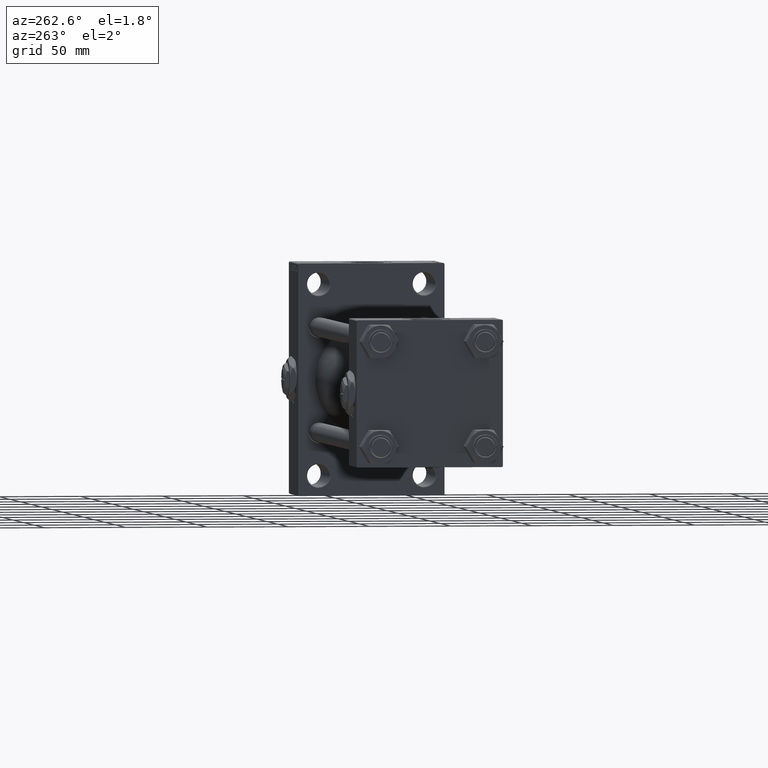
[diagram: clean part render]
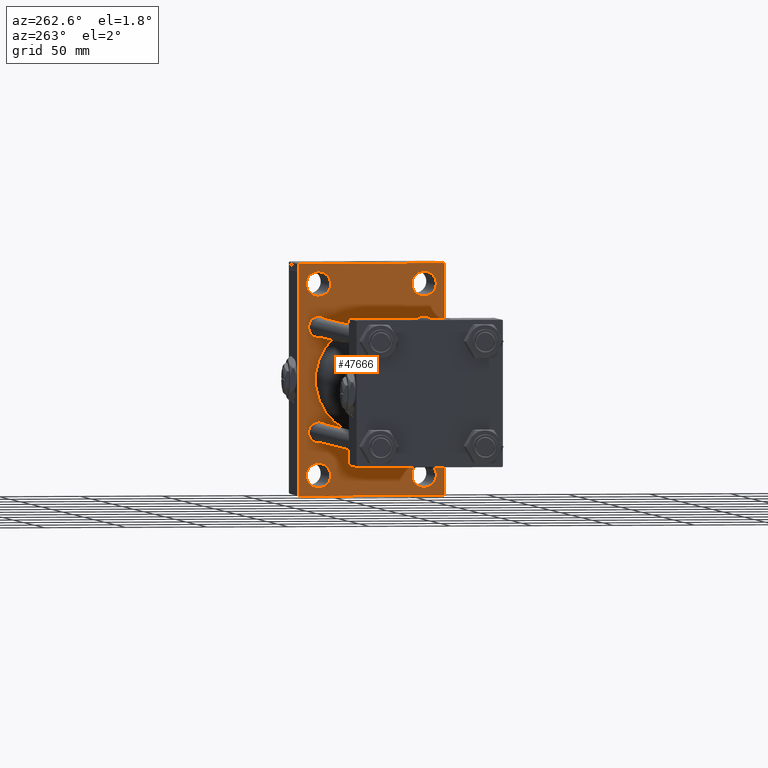
[diagram: same view with one face highlighted and labeled with its STEP entity id]
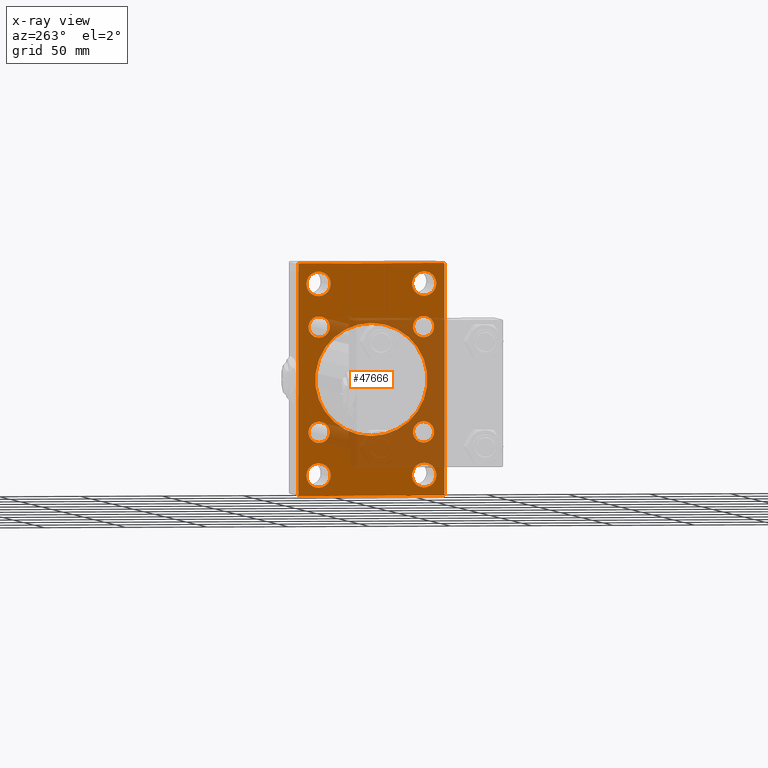
[diagram: x-ray of the same camera — body ghosted, the highlighted face saturated]
A machine part, auxiliary view. The second image highlights one B-rep face of the part: STEP entity #47666.
The next image is the same camera in x-ray: the body ghosted, the highlighted face saturated — about 33% of this face is hidden behind the body in this view.
In plain terms, the highlighted planar face has unit normal (-1, 0, 0).
Its self-contained STEP definition (entity closure, byte-faithful):
#400 = EDGE_LOOP ( 'NONE', ( #10069, #37564 ) ) ;
#523 = FACE_BOUND ( 'NONE', #47285, .T. ) ;
#637 = DIRECTION ( 'NONE',  ( 1.000000000000000000, 0.000000000000000000, 0.000000000000000000 ) ) ;
#773 = FACE_BOUND ( 'NONE', #25046, .T. ) ;
#1167 = ORIENTED_EDGE ( 'NONE', *, *, #43385, .T. ) ;
#1505 = CARTESIAN_POINT ( 'NONE',  ( 276.9999999999999432, -32.50000000000000000, 50.99999999999983658 ) ) ;
#1627 = AXIS2_PLACEMENT_3D ( 'NONE', #17409, #47647, #32024 ) ;
#1908 = DIRECTION ( 'NONE',  ( 1.000000000000000000, -0.000000000000000000, 0.000000000000000000 ) ) ;
#2069 = EDGE_LOOP ( 'NONE', ( #33215, #44481 ) ) ;
#2249 = DIRECTION ( 'NONE',  ( -0.000000000000000000, 0.7071067811865426878, 0.7071067811865524577 ) ) ;
#2492 = VERTEX_POINT ( 'NONE', #42956 ) ;
#2640 = ORIENTED_EDGE ( 'NONE', *, *, #8752, .T. ) ;
#2874 = CARTESIAN_POINT ( 'NONE',  ( 276.9999999999999432, -32.50000000000000000, -58.49999999999999289 ) ) ;
#2924 = AXIS2_PLACEMENT_3D ( 'NONE', #24348, #25756, #33287 ) ;
#3051 = DIRECTION ( 'NONE',  ( 0.000000000000000000, -0.7071067811865965336, 0.7071067811864985009 ) ) ;
#3549 = EDGE_CURVE ( 'NONE', #28884, #37235, #15712, .T. ) ;
#4048 = DIRECTION ( 'NONE',  ( -0.000000000000000000, 0.000000000000000000, 1.000000000000000000 ) ) ;
#4086 = CARTESIAN_POINT ( 'NONE',  ( 276.9999999999999432, -44.49999999999988631, -71.00000000000000000 ) ) ;
#4540 = EDGE_CURVE ( 'NONE', #13763, #28884, #20790, .T. ) ;
#4754 = EDGE_LOOP ( 'NONE', ( #39285, #28755 ) ) ;
#5047 = FACE_BOUND ( 'NONE', #2069, .T. ) ;
#5461 = CARTESIAN_POINT ( 'NONE',  ( 276.9999999999999432, 45.00000000000001421, -70.99999999999998579 ) ) ;
#5563 = VECTOR ( 'NONE', #42402, 1000.000000000000000 ) ;
#5617 = CIRCLE ( 'NONE', #37694, 6.500000000000005329 ) ;
#5923 = CIRCLE ( 'NONE', #32416, 7.500000000000173195 ) ;
#5946 = CARTESIAN_POINT ( 'NONE',  ( 276.9999999999999432, 32.14999999999999147, 32.15000000000000568 ) ) ;
#6184 = VERTEX_POINT ( 'NONE', #4086 ) ;
#6284 = VERTEX_POINT ( 'NONE', #25862 ) ;
#6532 = CARTESIAN_POINT ( 'NONE',  ( 276.9999999999999432, 45.00000000000002132, 70.50000000000000000 ) ) ;
#6605 = AXIS2_PLACEMENT_3D ( 'NONE', #5946, #41387, #21532 ) ;
#6814 = EDGE_LOOP ( 'NONE', ( #12923, #2640 ) ) ;
#6823 = LINE ( 'NONE', #22165, #32618 ) ;
#7056 = VERTEX_POINT ( 'NONE', #1505 ) ;
#7442 = CARTESIAN_POINT ( 'NONE',  ( 276.9999999999999432, -32.14999999999997726, 32.15000000000001279 ) ) ;
#7457 = CIRCLE ( 'NONE', #42008, 7.500000000000180300 ) ;
#8183 = CARTESIAN_POINT ( 'NONE',  ( 276.9999999999999432, -44.49999999999995026, 70.99999999999998579 ) ) ;
#8500 = CARTESIAN_POINT ( 'NONE',  ( 276.9999999999999432, 1.622946243093158675E-15, -34.50000000000000000 ) ) ;
#8752 = EDGE_CURVE ( 'NONE', #42795, #37170, #24237, .T. ) ;
#8841 = DIRECTION ( 'NONE',  ( 1.000000000000000000, -0.000000000000000000, 0.000000000000000000 ) ) ;
#8986 = DIRECTION ( 'NONE',  ( 0.000000000000000000, 0.000000000000000000, 1.000000000000000000 ) ) ;
#9271 = VERTEX_POINT ( 'NONE', #37140 ) ;
#9277 = VERTEX_POINT ( 'NONE', #10723 ) ;
#9490 = CARTESIAN_POINT ( 'NONE',  ( 276.9999999999999432, -32.50000000000000000, -50.99999999999980815 ) ) ;
#9642 = DIRECTION ( 'NONE',  ( 0.000000000000000000, 0.000000000000000000, -1.000000000000000000 ) ) ;
#9707 = DIRECTION ( 'NONE',  ( 1.000000000000000000, -0.000000000000000000, 0.000000000000000000 ) ) ;
#9766 = ORIENTED_EDGE ( 'NONE', *, *, #10092, .T. ) ;
#9886 = DIRECTION ( 'NONE',  ( 0.000000000000000000, -1.000000000000000000, -1.541976423090495387E-16 ) ) ;
#10069 = ORIENTED_EDGE ( 'NONE', *, *, #41894, .T. ) ;
#10092 = EDGE_CURVE ( 'NONE', #10265, #6184, #39917, .T. ) ;
#10265 = VERTEX_POINT ( 'NONE', #15694 ) ;
#10723 = CARTESIAN_POINT ( 'NONE',  ( 276.9999999999999432, 32.14999999999999147, -38.65000000000001279 ) ) ;
#10988 = CARTESIAN_POINT ( 'NONE',  ( 276.9999999999999432, 32.14999999999999147, 25.65000000000000213 ) ) ;
#11029 = CARTESIAN_POINT ( 'NONE',  ( 276.9999999999999432, 32.14999999999999147, -32.15000000000000568 ) ) ;
#11207 = DIRECTION ( 'NONE',  ( 1.000000000000000000, -0.000000000000000000, 0.000000000000000000 ) ) ;
#11455 = CARTESIAN_POINT ( 'NONE',  ( 276.9999999999999432, 45.00000000000002132, 71.00000000000000000 ) ) ;
#11480 = ORIENTED_EDGE ( 'NONE', *, *, #35062, .T. ) ;
#11514 = ORIENTED_EDGE ( 'NONE', *, *, #3549, .T. ) ;
#11742 = DIRECTION ( 'NONE',  ( 1.000000000000000000, -0.000000000000000000, 0.000000000000000000 ) ) ;
#12090 = VERTEX_POINT ( 'NONE', #8500 ) ;
#12544 = ORIENTED_EDGE ( 'NONE', *, *, #29013, .T. ) ;
#12923 = ORIENTED_EDGE ( 'NONE', *, *, #39286, .T. ) ;
#13269 = CARTESIAN_POINT ( 'NONE',  ( 276.9999999999999432, 32.50000000000000711, 66.00000000000018474 ) ) ;
#13763 = VERTEX_POINT ( 'NONE', #14756 ) ;
#13822 = VERTEX_POINT ( 'NONE', #15000 ) ;
#13846 = EDGE_CURVE ( 'NONE', #45768, #9277, #42239, .T. ) ;
#14419 = VECTOR ( 'NONE', #2249, 1000.000000000000000 ) ;
#14756 = CARTESIAN_POINT ( 'NONE',  ( 276.9999999999999432, 44.49999999999996447, 71.00000000000000000 ) ) ;
#14912 = VERTEX_POINT ( 'NONE', #44674 ) ;
#15000 = CARTESIAN_POINT ( 'NONE',  ( 276.9999999999999432, -2.602085213965210642E-15, 34.50000000000000000 ) ) ;
#15356 = CARTESIAN_POINT ( 'NONE',  ( 276.9999999999999432, -44.99999999999997158, 70.49999999999998579 ) ) ;
#15694 = CARTESIAN_POINT ( 'NONE',  ( 276.9999999999999432, 44.50000000000001421, -70.99999999999998579 ) ) ;
#15712 = LINE ( 'NONE', #11455, #5563 ) ;
#16095 = CARTESIAN_POINT ( 'NONE',  ( 276.9999999999999432, 0.000000000000000000, 0.000000000000000000 ) ) ;
#16591 = FACE_BOUND ( 'NONE', #6814, .T. ) ;
#17148 = CIRCLE ( 'NONE', #45283, 6.500000000000005329 ) ;
#17173 = ORIENTED_EDGE ( 'NONE', *, *, #13846, .T. ) ;
#17232 = EDGE_CURVE ( 'NONE', #20269, #17970, #46269, .T. ) ;
#17277 = CIRCLE ( 'NONE', #20568, 6.500000000000005329 ) ;
#17280 = EDGE_CURVE ( 'NONE', #13763, #24118, #25718, .T. ) ;
#17409 = CARTESIAN_POINT ( 'NONE',  ( 276.9999999999999432, -32.14999999999997726, -32.15000000000001279 ) ) ;
#17970 = VERTEX_POINT ( 'NONE', #21948 ) ;
#18153 = DIRECTION ( 'NONE',  ( 0.000000000000000000, 0.000000000000000000, 1.000000000000000000 ) ) ;
#18887 = VERTEX_POINT ( 'NONE', #32231 ) ;
#19018 = ORIENTED_EDGE ( 'NONE', *, *, #34195, .T. ) ;
#19494 = CARTESIAN_POINT ( 'NONE',  ( 276.9999999999999432, -32.14999999999997726, 32.15000000000001279 ) ) ;
#19901 = ORIENTED_EDGE ( 'NONE', *, *, #25872, .T. ) ;
#19906 = ORIENTED_EDGE ( 'NONE', *, *, #38598, .T. ) ;
#20269 = VERTEX_POINT ( 'NONE', #9490 ) ;
#20302 = VERTEX_POINT ( 'NONE', #20811 ) ;
#20362 = AXIS2_PLACEMENT_3D ( 'NONE', #44104, #36775, #9642 ) ;
#20383 = DIRECTION ( 'NONE',  ( 0.000000000000000000, 0.000000000000000000, 1.000000000000000000 ) ) ;
#20385 = FACE_BOUND ( 'NONE', #41155, .T. ) ;
#20539 = CARTESIAN_POINT ( 'NONE',  ( 276.9999999999999432, -32.50000000000000000, 58.50000000000000711 ) ) ;
#20568 = AXIS2_PLACEMENT_3D ( 'NONE', #19494, #31802, #42898 ) ;
#20731 = ORIENTED_EDGE ( 'NONE', *, *, #37976, .T. ) ;
#20790 = LINE ( 'NONE', #44655, #39374 ) ;
#20811 = CARTESIAN_POINT ( 'NONE',  ( 276.9999999999999432, 32.50000000000000711, -50.99999999999982236 ) ) ;
#21056 = LINE ( 'NONE', #33334, #34710 ) ;
#21532 = DIRECTION ( 'NONE',  ( 0.000000000000000000, 0.000000000000000000, 1.000000000000000000 ) ) ;
#21658 = CIRCLE ( 'NONE', #44968, 7.500000000000173195 ) ;
#21870 = AXIS2_PLACEMENT_3D ( 'NONE', #33155, #48518, #40969 ) ;
#21948 = CARTESIAN_POINT ( 'NONE',  ( 276.9999999999999432, -32.50000000000000000, -66.00000000000017053 ) ) ;
#22152 = VECTOR ( 'NONE', #9886, 1000.000000000000000 ) ;
#22165 = CARTESIAN_POINT ( 'NONE',  ( 276.9999999999999432, -57.74999999999687361, -57.75000000000488853 ) ) ;
#23163 = FACE_BOUND ( 'NONE', #41365, .T. ) ;
#23422 = FACE_BOUND ( 'NONE', #4754, .T. ) ;
#23424 = DIRECTION ( 'NONE',  ( 0.000000000000000000, 0.000000000000000000, -1.000000000000000000 ) ) ;
#23504 = VECTOR ( 'NONE', #47482, 1000.000000000000000 ) ;
#23630 = VERTEX_POINT ( 'NONE', #10988 ) ;
#23756 = CIRCLE ( 'NONE', #25372, 7.500000000000173195 ) ;
#24118 = VERTEX_POINT ( 'NONE', #8183 ) ;
#24237 = CIRCLE ( 'NONE', #30634, 7.500000000000173195 ) ;
#24348 = CARTESIAN_POINT ( 'NONE',  ( 276.9999999999999432, 32.14999999999999147, 32.15000000000000568 ) ) ;
#24776 = CARTESIAN_POINT ( 'NONE',  ( 276.9999999999999432, -32.14999999999997726, 38.65000000000002700 ) ) ;
#25042 = DIRECTION ( 'NONE',  ( 0.000000000000000000, 0.000000000000000000, 1.000000000000000000 ) ) ;
#25046 = EDGE_LOOP ( 'NONE', ( #17173, #20731 ) ) ;
#25167 = CIRCLE ( 'NONE', #20362, 34.50000000000000000 ) ;
#25372 = AXIS2_PLACEMENT_3D ( 'NONE', #40150, #1908, #25042 ) ;
#25718 = LINE ( 'NONE', #28985, #22152 ) ;
#25756 = DIRECTION ( 'NONE',  ( 1.000000000000000000, -0.000000000000000000, 0.000000000000000000 ) ) ;
#25852 = AXIS2_PLACEMENT_3D ( 'NONE', #20539, #31852, #8986 ) ;
#25862 = CARTESIAN_POINT ( 'NONE',  ( 276.9999999999999432, 32.50000000000000711, -66.00000000000017053 ) ) ;
#25872 = EDGE_CURVE ( 'NONE', #27683, #24118, #40495, .T. ) ;
#26125 = DIRECTION ( 'NONE',  ( 0.000000000000000000, 0.000000000000000000, 1.000000000000000000 ) ) ;
#26196 = EDGE_CURVE ( 'NONE', #31893, #35623, #5617, .T. ) ;
#26428 = LINE ( 'NONE', #34470, #42814 ) ;
#26888 = EDGE_CURVE ( 'NONE', #13822, #12090, #32137, .T. ) ;
#26961 = AXIS2_PLACEMENT_3D ( 'NONE', #29724, #49111, #18153 ) ;
#27084 = DIRECTION ( 'NONE',  ( 0.000000000000000000, 0.000000000000000000, 1.000000000000000000 ) ) ;
#27176 = FACE_BOUND ( 'NONE', #46705, .T. ) ;
#27683 = VERTEX_POINT ( 'NONE', #15356 ) ;
#28372 = DIRECTION ( 'NONE',  ( 0.000000000000000000, 0.000000000000000000, 1.000000000000000000 ) ) ;
#28566 = DIRECTION ( 'NONE',  ( 0.000000000000000000, 0.7071067811865867636, -0.7071067811865081598 ) ) ;
#28755 = ORIENTED_EDGE ( 'NONE', *, *, #37508, .T. ) ;
#28884 = VERTEX_POINT ( 'NONE', #6532 ) ;
#28985 = CARTESIAN_POINT ( 'NONE',  ( 276.9999999999999432, 45.00000000000002132, 71.00000000000000000 ) ) ;
#29013 = EDGE_CURVE ( 'NONE', #18887, #7056, #21658, .T. ) ;
#29724 = CARTESIAN_POINT ( 'NONE',  ( 276.9999999999999432, -32.50000000000000000, -58.49999999999999289 ) ) ;
#29899 = DIRECTION ( 'NONE',  ( 1.000000000000000000, -0.000000000000000000, 0.000000000000000000 ) ) ;
#30123 = EDGE_CURVE ( 'NONE', #2492, #14912, #35328, .T. ) ;
#30634 = AXIS2_PLACEMENT_3D ( 'NONE', #47308, #39745, #20383 ) ;
#31225 = EDGE_CURVE ( 'NONE', #20302, #6284, #41016, .T. ) ;
#31306 = AXIS2_PLACEMENT_3D ( 'NONE', #38862, #637, #31313 ) ;
#31313 = DIRECTION ( 'NONE',  ( 0.000000000000000000, 0.000000000000000000, -1.000000000000000000 ) ) ;
#31802 = DIRECTION ( 'NONE',  ( 1.000000000000000000, -0.000000000000000000, 0.000000000000000000 ) ) ;
#31852 = DIRECTION ( 'NONE',  ( 1.000000000000000000, -0.000000000000000000, 0.000000000000000000 ) ) ;
#31893 = VERTEX_POINT ( 'NONE', #39658 ) ;
#31941 = FACE_OUTER_BOUND ( 'NONE', #37526, .T. ) ;
#32024 = DIRECTION ( 'NONE',  ( 0.000000000000000000, 0.000000000000000000, 1.000000000000000000 ) ) ;
#32137 = CIRCLE ( 'NONE', #31306, 34.50000000000000000 ) ;
#32231 = CARTESIAN_POINT ( 'NONE',  ( 276.9999999999999432, -32.50000000000000000, 66.00000000000018474 ) ) ;
#32391 = DIRECTION ( 'NONE',  ( 1.000000000000000000, -0.000000000000000000, 0.000000000000000000 ) ) ;
#32393 = CARTESIAN_POINT ( 'NONE',  ( 276.9999999999999432, 45.00000000000001421, -70.49999999999997158 ) ) ;
#32416 = AXIS2_PLACEMENT_3D ( 'NONE', #43303, #8841, #40510 ) ;
#32618 = VECTOR ( 'NONE', #3051, 1000.000000000000114 ) ;
#32653 = ORIENTED_EDGE ( 'NONE', *, *, #26888, .T. ) ;
#33084 = CIRCLE ( 'NONE', #21870, 6.500000000000005329 ) ;
#33155 = CARTESIAN_POINT ( 'NONE',  ( 276.9999999999999432, -32.14999999999997726, -32.15000000000001279 ) ) ;
#33215 = ORIENTED_EDGE ( 'NONE', *, *, #35028, .T. ) ;
#33287 = DIRECTION ( 'NONE',  ( 0.000000000000000000, 0.000000000000000000, 1.000000000000000000 ) ) ;
#33334 = CARTESIAN_POINT ( 'NONE',  ( 276.9999999999999432, 57.75000000000061817, -57.74999999999901235 ) ) ;
#33569 = AXIS2_PLACEMENT_3D ( 'NONE', #16095, #46317, #4048 ) ;
#34049 = CARTESIAN_POINT ( 'NONE',  ( 276.9999999999999432, 32.50000000000000711, -58.50000000000000000 ) ) ;
#34195 = EDGE_CURVE ( 'NONE', #7056, #18887, #41118, .T. ) ;
#34470 = CARTESIAN_POINT ( 'NONE',  ( 276.9999999999999432, -44.99999999999997158, 70.99999999999998579 ) ) ;
#34710 = VECTOR ( 'NONE', #36866, 999.9999999999998863 ) ;
#34798 = EDGE_CURVE ( 'NONE', #14912, #2492, #33084, .T. ) ;
#35028 = EDGE_CURVE ( 'NONE', #41292, #23630, #45169, .T. ) ;
#35029 = CIRCLE ( 'NONE', #2924, 6.499999999999999112 ) ;
#35062 = EDGE_CURVE ( 'NONE', #37235, #10265, #21056, .T. ) ;
#35223 = FACE_BOUND ( 'NONE', #400, .T. ) ;
#35328 = CIRCLE ( 'NONE', #1627, 6.500000000000005329 ) ;
#35386 = CARTESIAN_POINT ( 'NONE',  ( 276.9999999999999432, 32.14999999999999147, -32.15000000000000568 ) ) ;
#35422 = CARTESIAN_POINT ( 'NONE',  ( 276.9999999999999432, 32.14999999999999147, -25.64999999999999858 ) ) ;
#35506 = DIRECTION ( 'NONE',  ( 1.000000000000000000, -0.000000000000000000, 0.000000000000000000 ) ) ;
#35623 = VERTEX_POINT ( 'NONE', #24776 ) ;
#36120 = EDGE_CURVE ( 'NONE', #27683, #9271, #26428, .T. ) ;
#36246 = ORIENTED_EDGE ( 'NONE', *, *, #31225, .T. ) ;
#36492 = DIRECTION ( 'NONE',  ( 0.000000000000000000, 0.000000000000000000, 1.000000000000000000 ) ) ;
#36775 = DIRECTION ( 'NONE',  ( 1.000000000000000000, 0.000000000000000000, 0.000000000000000000 ) ) ;
#36804 = CARTESIAN_POINT ( 'NONE',  ( 276.9999999999999432, 32.14999999999999147, 38.65000000000001279 ) ) ;
#36866 = DIRECTION ( 'NONE',  ( -0.000000000000000000, -0.7071067811865376918, -0.7071067811865574537 ) ) ;
#37140 = CARTESIAN_POINT ( 'NONE',  ( 276.9999999999999432, -44.99999999999997158, -70.50000000000000000 ) ) ;
#37170 = VERTEX_POINT ( 'NONE', #13269 ) ;
#37235 = VERTEX_POINT ( 'NONE', #32393 ) ;
#37370 = AXIS2_PLACEMENT_3D ( 'NONE', #35386, #11742, #27084 ) ;
#37443 = ORIENTED_EDGE ( 'NONE', *, *, #30123, .T. ) ;
#37508 = EDGE_CURVE ( 'NONE', #17970, #20269, #7457, .T. ) ;
#37526 = EDGE_LOOP ( 'NONE', ( #9766, #1167, #43182, #19901, #41098, #45873, #11514, #11480 ) ) ;
#37564 = ORIENTED_EDGE ( 'NONE', *, *, #26196, .T. ) ;
#37694 = AXIS2_PLACEMENT_3D ( 'NONE', #7442, #11207, #44950 ) ;
#37760 = AXIS2_PLACEMENT_3D ( 'NONE', #34049, #35506, #36492 ) ;
#37976 = EDGE_CURVE ( 'NONE', #9277, #45768, #17148, .T. ) ;
#38358 = EDGE_CURVE ( 'NONE', #12090, #13822, #25167, .T. ) ;
#38598 = EDGE_CURVE ( 'NONE', #6284, #20302, #5923, .T. ) ;
#38862 = CARTESIAN_POINT ( 'NONE',  ( 276.9999999999999432, -2.602085213965210642E-15, 0.000000000000000000 ) ) ;
#38925 = CARTESIAN_POINT ( 'NONE',  ( 276.9999999999999432, 32.50000000000000711, 50.99999999999983658 ) ) ;
#38942 = CARTESIAN_POINT ( 'NONE',  ( 276.9999999999999432, -32.50000000000000000, 58.50000000000000711 ) ) ;
#39248 = PLANE ( 'NONE',  #33569 ) ;
#39285 = ORIENTED_EDGE ( 'NONE', *, *, #17232, .T. ) ;
#39286 = EDGE_CURVE ( 'NONE', #37170, #42795, #23756, .T. ) ;
#39374 = VECTOR ( 'NONE', #28566, 1000.000000000000000 ) ;
#39658 = CARTESIAN_POINT ( 'NONE',  ( 276.9999999999999432, -32.14999999999997726, 25.65000000000000213 ) ) ;
#39745 = DIRECTION ( 'NONE',  ( 1.000000000000000000, -0.000000000000000000, 0.000000000000000000 ) ) ;
#39917 = LINE ( 'NONE', #5461, #23504 ) ;
#40150 = CARTESIAN_POINT ( 'NONE',  ( 276.9999999999999432, 32.50000000000000711, 58.50000000000000711 ) ) ;
#40495 = LINE ( 'NONE', #44762, #14419 ) ;
#40510 = DIRECTION ( 'NONE',  ( 0.000000000000000000, 0.000000000000000000, 1.000000000000000000 ) ) ;
#40939 = ORIENTED_EDGE ( 'NONE', *, *, #34798, .T. ) ;
#40969 = DIRECTION ( 'NONE',  ( 0.000000000000000000, 0.000000000000000000, 1.000000000000000000 ) ) ;
#41016 = CIRCLE ( 'NONE', #37760, 7.500000000000173195 ) ;
#41098 = ORIENTED_EDGE ( 'NONE', *, *, #17280, .F. ) ;
#41118 = CIRCLE ( 'NONE', #25852, 7.500000000000173195 ) ;
#41155 = EDGE_LOOP ( 'NONE', ( #40939, #37443 ) ) ;
#41292 = VERTEX_POINT ( 'NONE', #36804 ) ;
#41365 = EDGE_LOOP ( 'NONE', ( #32653, #41612 ) ) ;
#41387 = DIRECTION ( 'NONE',  ( 1.000000000000000000, -0.000000000000000000, 0.000000000000000000 ) ) ;
#41612 = ORIENTED_EDGE ( 'NONE', *, *, #38358, .T. ) ;
#41894 = EDGE_CURVE ( 'NONE', #35623, #31893, #17277, .T. ) ;
#42008 = AXIS2_PLACEMENT_3D ( 'NONE', #2874, #9707, #47699 ) ;
#42239 = CIRCLE ( 'NONE', #37370, 6.500000000000005329 ) ;
#42402 = DIRECTION ( 'NONE',  ( 0.000000000000000000, -4.886545002751570165E-17, -1.000000000000000000 ) ) ;
#42795 = VERTEX_POINT ( 'NONE', #38925 ) ;
#42814 = VECTOR ( 'NONE', #23424, 1000.000000000000000 ) ;
#42898 = DIRECTION ( 'NONE',  ( 0.000000000000000000, 0.000000000000000000, 1.000000000000000000 ) ) ;
#42956 = CARTESIAN_POINT ( 'NONE',  ( 276.9999999999999432, -32.14999999999997726, -38.65000000000001990 ) ) ;
#42987 = EDGE_CURVE ( 'NONE', #23630, #41292, #35029, .T. ) ;
#43182 = ORIENTED_EDGE ( 'NONE', *, *, #36120, .F. ) ;
#43303 = CARTESIAN_POINT ( 'NONE',  ( 276.9999999999999432, 32.50000000000000711, -58.50000000000000000 ) ) ;
#43385 = EDGE_CURVE ( 'NONE', #6184, #9271, #6823, .T. ) ;
#44104 = CARTESIAN_POINT ( 'NONE',  ( 276.9999999999999432, -2.602085213965210642E-15, 0.000000000000000000 ) ) ;
#44481 = ORIENTED_EDGE ( 'NONE', *, *, #42987, .T. ) ;
#44655 = CARTESIAN_POINT ( 'NONE',  ( 276.9999999999999432, 57.74999999999750599, 57.75000000000390799 ) ) ;
#44674 = CARTESIAN_POINT ( 'NONE',  ( 276.9999999999999432, -32.14999999999997726, -25.65000000000000568 ) ) ;
#44762 = CARTESIAN_POINT ( 'NONE',  ( 276.9999999999999432, -57.75000000000028422, 57.74999999999948841 ) ) ;
#44950 = DIRECTION ( 'NONE',  ( 0.000000000000000000, 0.000000000000000000, 1.000000000000000000 ) ) ;
#44968 = AXIS2_PLACEMENT_3D ( 'NONE', #38942, #32391, #28372 ) ;
#45169 = CIRCLE ( 'NONE', #6605, 6.499999999999999112 ) ;
#45283 = AXIS2_PLACEMENT_3D ( 'NONE', #11029, #29899, #26125 ) ;
#45768 = VERTEX_POINT ( 'NONE', #35422 ) ;
#45873 = ORIENTED_EDGE ( 'NONE', *, *, #4540, .T. ) ;
#46269 = CIRCLE ( 'NONE', #26961, 7.500000000000180300 ) ;
#46317 = DIRECTION ( 'NONE',  ( -1.000000000000000000, 0.000000000000000000, -0.000000000000000000 ) ) ;
#46705 = EDGE_LOOP ( 'NONE', ( #12544, #19018 ) ) ;
#47285 = EDGE_LOOP ( 'NONE', ( #36246, #19906 ) ) ;
#47308 = CARTESIAN_POINT ( 'NONE',  ( 276.9999999999999432, 32.50000000000000711, 58.50000000000000711 ) ) ;
#47482 = DIRECTION ( 'NONE',  ( 0.000000000000000000, -1.000000000000000000, -1.541976423090495633E-16 ) ) ;
#47647 = DIRECTION ( 'NONE',  ( 1.000000000000000000, -0.000000000000000000, 0.000000000000000000 ) ) ;
#47666 = ADVANCED_FACE ( 'NONE', ( #27176, #23422, #523, #16591, #35223, #5047, #773, #20385, #23163, #31941 ), #39248, .T. ) ;
#47699 = DIRECTION ( 'NONE',  ( 0.000000000000000000, 0.000000000000000000, 1.000000000000000000 ) ) ;
#48518 = DIRECTION ( 'NONE',  ( 1.000000000000000000, -0.000000000000000000, 0.000000000000000000 ) ) ;
#49111 = DIRECTION ( 'NONE',  ( 1.000000000000000000, -0.000000000000000000, 0.000000000000000000 ) ) ;